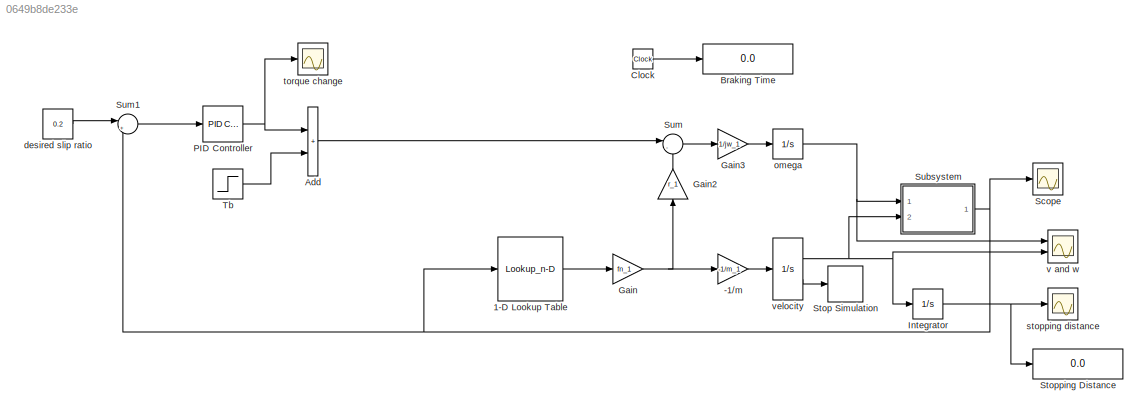
MODEL slx_0649b8de233e
KIND model
CONFIG AbsTol = auto
CONFIG EnableMultiTasking = off
CONFIG FixedStep = auto
CONFIG MaxStep = 1.0
CONFIG MinStep = auto
CONFIG RelTol = 1e-3
CONFIG SampleTimeConstraint = Unconstrained
CONFIG SolverName = ode15s
CONFIG StartTime = 0.0
CONFIG StopTime = 50
BLOCK [Gain] -1//m
  Gain = -1/m_1
BLOCK [Lookup_n-D] 1-D Lookup Table
  BreakpointsForDimension1 = slip_1
  InputPortMap = u0
  InternalRulePriority = Speed
  NumberOfTableDimensions = 1
  Ports = [1, 1]
  RndMeth = Simplest
  Table = mu_1
BLOCK [Sum] Add
  IconShape = rectangular
  Ports = [2, 1]
BLOCK [Display] Braking Time
  Decimation = 1
  Ports = [1]
BLOCK [Clock] Clock
BLOCK [Gain] Gain
  Gain = fn_1
BLOCK [Gain] Gain2
  Gain = r_1
  NameLocation = right
BLOCK [Gain] Gain3
  Gain = 1/jw_1
BLOCK [Integrator] Integrator
  Ports = [1, 1]
BLOCK [Reference] PID Controller  REF=pid_lib/PID Controller
  Ports = [1, 1]
  SourceBlock = pid_lib/PID Controller
  SourceProductBaseCode = SL
  SourceType = PID 1dof
BLOCK [Scope] Scope
  Floating = off
  NumInputPorts = 1
  Ports = [1]
  ScopeSpecificationString = Simulink.scopes.TimeScopeBlockCfg('CurrentConfiguration', extmgr.ConfigurationSet(extmgr.Configuration('Core','General UI',true),extmgr.Configuration('Core','Source UI',true),extmgr.Configuration('Sources','WiredSimulink',true,'DataLoggingVariableName','ScopeData3'),extmgr.Configuration('Visuals','Time Domain',true,'SerializedDisplays',{struct('MinYLimReal','-22197704721940.125','MaxYLimReal','246...<+1485ch>
BLOCK [Stop] Stop Simulation
BLOCK [Display] Stopping Distance
  Decimation = 1
  Ports = [1]
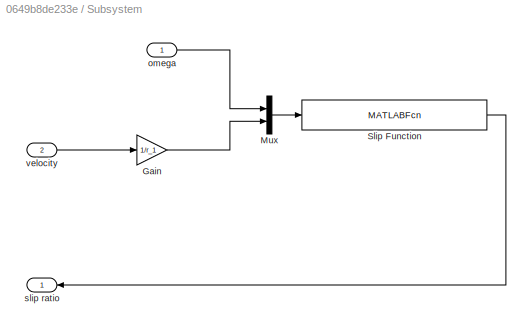
BLOCK [SubSystem] Subsystem
  Ports = [2, 1]
  RequestExecContextInheritance = off
BLOCK [Gain] Subsystem/Gain
  Gain = 1/r_1
BLOCK [Mux] Subsystem/Mux
  DisplayOption = bar
  Inputs = 2
  Ports = [2, 1]
BLOCK [MATLABFcn] Subsystem/Slip Function
  MATLABFcn = 1.0 - u(1)/(u(2) + (u(2)==0)*eps)
  OutputDimensions = 1
  OutputSignalType = real
  Ports = [1, 1]
BLOCK [Inport] Subsystem/omega
BLOCK [Outport] Subsystem/slip ratio
BLOCK [Inport] Subsystem/velocity
  Port = 2
BLOCK [Sum] Sum
  Inputs = |-+
  Ports = [2, 1]
BLOCK [Sum] Sum1
  Inputs = |+-
  Ports = [2, 1]
BLOCK [Step] Tb
  After = 0
  SampleTime = 0
  Time = 0
BLOCK [Constant] desired slip ratio
  Value = 0.2
BLOCK [Integrator] omega
  InitialCondition = w
  LimitOutput = on
  LowerSaturationLimit = 0
  Ports = [1, 1]
  UpperSaturationLimit = 1000
BLOCK [Scope] stopping distance
  Floating = off
  NumInputPorts = 1
  Ports = [1]
  ScopeSpecificationString = Simulink.scopes.TimeScopeBlockCfg('CurrentConfiguration', extmgr.ConfigurationSet(extmgr.Configuration('Core','General UI',true),extmgr.Configuration('Core','Source UI',true),extmgr.Configuration('Sources','WiredSimulink',true,'DataLoggingVariableName','ScopeData1'),extmgr.Configuration('Visuals','Time Domain',true,'SerializedDisplays',{struct('MinYLimReal','-73.33339','MaxYLimReal','660.00054','Y...<+1404ch>
BLOCK [Scope] torque change
  Floating = off
  NumInputPorts = 1
  Ports = [1]
  ScopeSpecificationString = Simulink.scopes.TimeScopeBlockCfg('CurrentConfiguration', extmgr.ConfigurationSet(extmgr.Configuration('Core','General UI',true),extmgr.Configuration('Core','Source UI',true),extmgr.Configuration('Sources','WiredSimulink',true,'DataLoggingVariableName','ScopeData2'),extmgr.Configuration('Visuals','Time Domain',true,'SerializedDisplays',{struct('MinYLimReal','-693.28685','MaxYLimReal','243.69854','...<+1456ch>
BLOCK [Scope] v and w
  Floating = off
  NumInputPorts = 2
  Ports = [2]
  ScopeSpecificationString = Simulink.scopes.TimeScopeBlockCfg('CurrentConfiguration', extmgr.ConfigurationSet(extmgr.Configuration('Core','General UI',true),extmgr.Configuration('Core','Source UI',true),extmgr.Configuration('Sources','WiredSimulink',true),extmgr.Configuration('Visuals','Time Domain',true,'SerializedDisplays',{struct('MinYLimReal','-10.33333','MaxYLimReal','93.00000','YLabelReal','','MinYLimMag','0.00000','Ma...<+1444ch>
BLOCK [Integrator] velocity
  InitialCondition = v_1
  LimitOutput = on
  LowerSaturationLimit = 0
  Ports = [1, 2]
  ShowSaturationPort = on
  UpperSaturationLimit = 1000
LINE -1//m:1 -> velocity:1
LINE 1-D Lookup Table:1 -> Gain:1
LINE Add:1 -> Sum:1
LINE Clock:1 -> Braking Time:1
LINE Gain2:1 -> Sum:2
LINE Gain3:1 -> omega:1
NET Gain:1 -> -1//m:1, Gain2:1
NET Integrator:1 -> Stopping Distance:1, stopping distance:1
NET PID Controller:1 -> Add:1, torque change:1
LINE Subsystem/Gain:1 -> Subsystem/Mux:2
LINE Subsystem/Mux:1 -> Subsystem/Slip Function:1
LINE Subsystem/Slip Function:1 -> Subsystem/slip ratio:1
LINE Subsystem/omega:1 -> Subsystem/Mux:1
LINE Subsystem/velocity:1 -> Subsystem/Gain:1
NET Subsystem:1 -> 1-D Lookup Table:1, Scope:1, Sum1:2
LINE Sum1:1 -> PID Controller:1
LINE Sum:1 -> Gain3:1
LINE Tb:1 -> Add:2
LINE desired slip ratio:1 -> Sum1:1
NET omega:1 -> Subsystem:1, v and w:1
NET velocity:1 -> Integrator:1, Subsystem:2, v and w:2
LINE velocity:2 -> Stop Simulation:1
note: NET lines group one-source signal fan-out (src -> all destinations, sorted); 1:1 wires keep LINE
